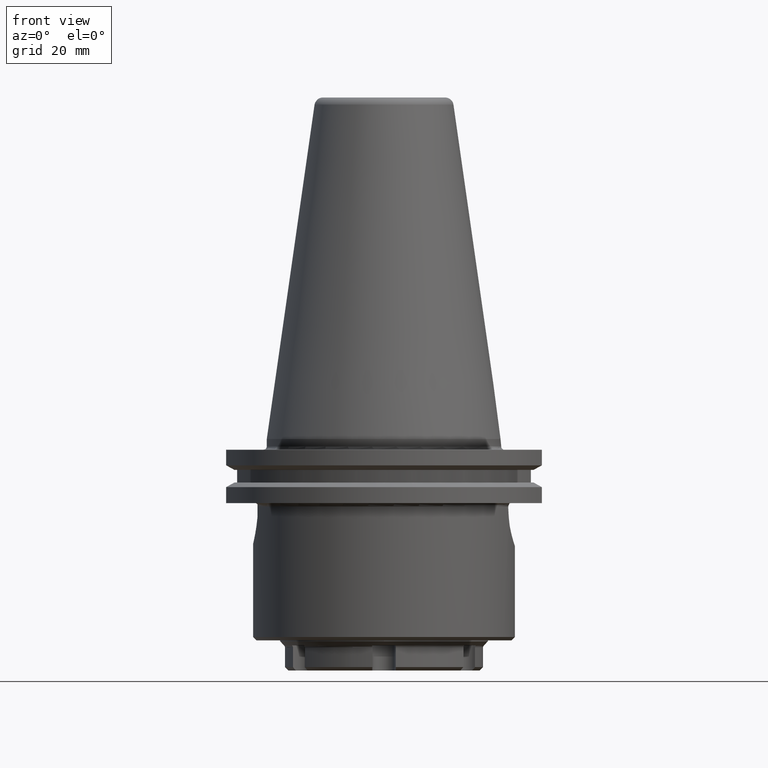
[diagram: clean part render]
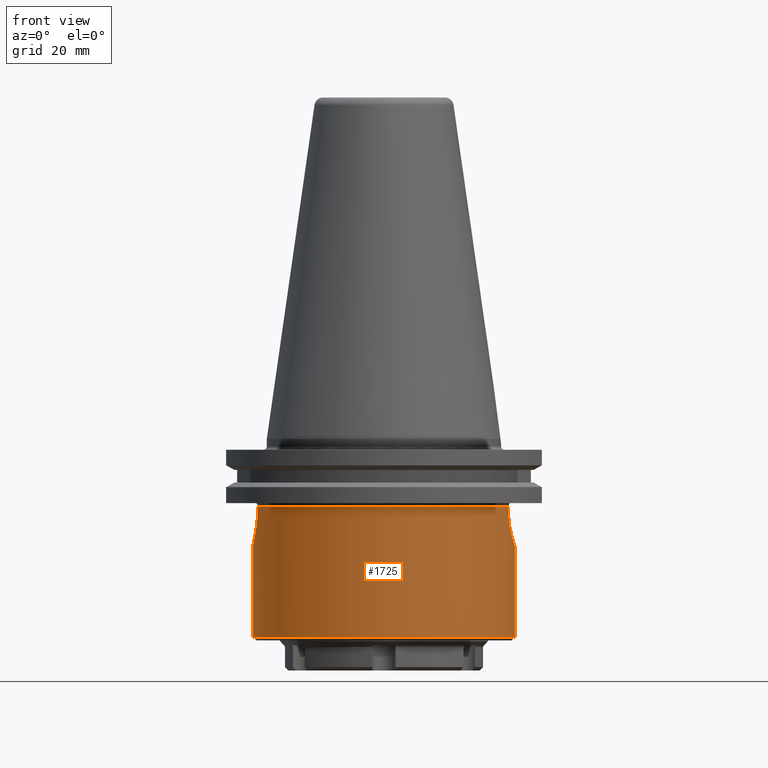
[diagram: same view with one face highlighted and labeled with its STEP entity id]
A machine part, front view. The second image highlights one B-rep face of the part: STEP entity #1725.
In plain terms, the highlighted cylindrical surface (bore or boss wall) has radius 39 mm, axis along (0, 0, -1).
Its self-contained STEP definition (entity closure, byte-faithful):
#121=LINE('',#3096,#221);
#122=LINE('',#3097,#222);
#221=VECTOR('',#2351,1000.);
#222=VECTOR('',#2352,1000.);
#254=CYLINDRICAL_SURFACE('',#1922,39.);
#377=CIRCLE('',#1900,39.);
#379=CIRCLE('',#1905,39.);
#381=CIRCLE('',#1909,39.);
#873=ORIENTED_EDGE('',*,*,#1131,.F.);
#874=ORIENTED_EDGE('',*,*,#1127,.T.);
#875=ORIENTED_EDGE('',*,*,#1124,.T.);
#876=ORIENTED_EDGE('',*,*,#1121,.F.);
#877=ORIENTED_EDGE('',*,*,#1118,.F.);
#878=ORIENTED_EDGE('',*,*,#1120,.F.);
#879=ORIENTED_EDGE('',*,*,#1116,.T.);
#880=ORIENTED_EDGE('',*,*,#1128,.T.);
#881=ORIENTED_EDGE('',*,*,#1114,.T.);
#1114=EDGE_CURVE('',#1294,#1293,#1370,.T.);
#1116=EDGE_CURVE('',#1296,#1295,#377,.T.);
#1118=EDGE_CURVE('',#1297,#1298,#1373,.T.);
#1120=EDGE_CURVE('',#1296,#1297,#1374,.T.);
#1121=EDGE_CURVE('',#1298,#1299,#1375,.T.);
#1124=EDGE_CURVE('',#1301,#1299,#379,.T.);
#1127=EDGE_CURVE('',#1293,#1301,#121,.F.);
#1128=EDGE_CURVE('',#1295,#1294,#122,.T.);
#1131=EDGE_CURVE('',#1304,#1304,#381,.T.);
#1293=VERTEX_POINT('',#3025);
#1294=VERTEX_POINT('',#3026);
#1295=VERTEX_POINT('',#3044);
#1296=VERTEX_POINT('',#3046);
#1297=VERTEX_POINT('',#3062);
#1298=VERTEX_POINT('',#3063);
#1299=VERTEX_POINT('',#3074);
#1301=VERTEX_POINT('',#3086);
#1304=VERTEX_POINT('',#3103);
#1370=B_SPLINE_CURVE_WITH_KNOTS('',3,(#3027,#3028,#3029,#3030,#3031,#3032,
#3033,#3034,#3035,#3036),.UNSPECIFIED.,.F.,.F.,(4,1,1,1,1,1,1,4),(0.00197409660882434,
0.00876782468064547,0.012164688716556,0.0155615527524666,0.0189584167883772,
0.0223552808242877,0.0257521448601983,0.0291490088961088),.UNSPECIFIED.);
#1373=B_SPLINE_CURVE_WITH_KNOTS('',3,(#3052,#3053,#3054,#3055,#3056,#3057,
#3058,#3059,#3060,#3061),.UNSPECIFIED.,.F.,.F.,(4,1,1,1,1,1,1,4),(0.,0.00317648407529113,
0.00635296815058225,0.00952945222587338,0.0127059363011645,0.0190589044517468,
0.0222353885270379,0.025411872602329),.UNSPECIFIED.);
#1374=B_SPLINE_CURVE_WITH_KNOTS('',3,(#3066,#3067,#3068,#3069),
 .UNSPECIFIED.,.F.,.F.,(4,4),(0.00227489071634437,0.0086139916078548),
 .UNSPECIFIED.);
#1375=B_SPLINE_CURVE_WITH_KNOTS('',3,(#3070,#3071,#3072,#3073),
 .UNSPECIFIED.,.F.,.F.,(4,4),(0.0014974438541701,0.00783953785349362),
 .UNSPECIFIED.);
#1481=EDGE_LOOP('',(#873));
#1482=EDGE_LOOP('',(#874,#875,#876,#877,#878,#879,#880,#881));
#1598=FACE_BOUND('',#1481,.T.);
#1599=FACE_BOUND('',#1482,.T.);
#1725=ADVANCED_FACE('',(#1598,#1599),#254,.T.);
#1900=AXIS2_PLACEMENT_3D('',#3045,#2336,#2337);
#1905=AXIS2_PLACEMENT_3D('',#3085,#2346,#2347);
#1909=AXIS2_PLACEMENT_3D('',#3102,#2358,#2359);
#1922=AXIS2_PLACEMENT_3D('',#3127,#2390,#2391);
#2336=DIRECTION('',(0.,2.22044604925031E-16,-1.));
#2337=DIRECTION('',(-1.,0.,0.));
#2346=DIRECTION('',(0.,2.22044604925031E-16,-1.));
#2347=DIRECTION('',(-1.,0.,0.));
#2351=DIRECTION('',(0.,2.22044604925031E-16,-1.));
#2352=DIRECTION('',(0.,2.22044604925031E-16,-1.));
#2358=DIRECTION('',(0.,2.22044604925031E-16,-1.));
#2359=DIRECTION('',(-1.,0.,0.));
#2390=DIRECTION('',(0.,2.22044604925031E-16,-1.));
#2391=DIRECTION('',(-1.,0.,0.));
#3025=CARTESIAN_POINT('',(-37.7,9.98548947222923,-23.344113570582));
#3026=CARTESIAN_POINT('',(-37.7,-9.98548947222922,-23.344113570582));
#3027=CARTESIAN_POINT('',(-37.7,-9.98548947222922,-23.344113570582));
#3028=CARTESIAN_POINT('',(-37.8873725462905,-9.27806846750046,-25.4875380975458));
#3029=CARTESIAN_POINT('',(-38.3731591566487,-7.36527865337046,-28.4535433486796));
#3030=CARTESIAN_POINT('',(-38.8922108407222,-3.45084677594832,-30.8045764775105));
#3031=CARTESIAN_POINT('',(-39.0524417623821,-0.0362620949982049,-31.4662371715233));
#3032=CARTESIAN_POINT('',(-38.8979348382223,3.39379847844601,-30.8301074332199));
#3033=CARTESIAN_POINT('',(-38.5075508940817,6.36759628228672,-29.0605873697474));
#3034=CARTESIAN_POINT('',(-38.0467201521215,8.64067887857672,-26.4841470402375));
#3035=CARTESIAN_POINT('',(-37.7945904385229,9.62836531299491,-24.4261689194582));
#3036=CARTESIAN_POINT('',(-37.7,9.98548947222922,-23.344113570582));
#3044=CARTESIAN_POINT('',(-37.7,-9.98548947222922,-20.1));
#3045=CARTESIAN_POINT('',(0.,4.46309655899313E-15,-20.1));
#3046=CARTESIAN_POINT('',(37.0048374184272,-12.3143009397922,-20.1));
#3052=CARTESIAN_POINT('',(37.5000000000001,-10.7121426428139,-26.1973586636161));
#3053=CARTESIAN_POINT('',(37.6673751191765,-10.1262125279524,-27.0817111765154));
#3054=CARTESIAN_POINT('',(38.0270595198239,-8.76607190592562,-28.6695758492856));
#3055=CARTESIAN_POINT('',(38.5439408345682,-6.17048914304116,-30.5209823302981));
#3056=CARTESIAN_POINT('',(38.910407024169,-3.194501093257,-31.6825842407854));
#3057=CARTESIAN_POINT('',(39.0913597667098,1.0671863518334,-32.2183717782579));
#3058=CARTESIAN_POINT('',(38.718853525549,5.30451952481769,-31.1410605562551));
#3059=CARTESIAN_POINT('',(38.0268339772268,8.76491849526155,-28.6701819172075));
#3060=CARTESIAN_POINT('',(37.6673778818025,10.126202856827,-27.0817257732803));
#3061=CARTESIAN_POINT('',(37.5000000000001,10.712142642814,-26.1973586636161));
#3062=CARTESIAN_POINT('',(37.5000000000001,-10.7121426428139,-26.1973586636161));
#3063=CARTESIAN_POINT('',(37.5000000000001,10.712142642814,-26.1973586636161));
#3066=CARTESIAN_POINT('',(37.0048374184272,-12.3143009397922,-20.1));
#3067=CARTESIAN_POINT('',(37.0475690401508,-12.185891156546,-22.2092189535273));
#3068=CARTESIAN_POINT('',(37.234064680337,-11.6431024722235,-24.3107633850546));
#3069=CARTESIAN_POINT('',(37.5000000000001,-10.7121426428139,-26.1973586636161));
#3070=CARTESIAN_POINT('',(37.5000000000001,10.712142642814,-26.1973586636161));
#3071=CARTESIAN_POINT('',(37.2342502017422,11.6424530174013,-24.3120795088684));
#3072=CARTESIAN_POINT('',(37.047622870081,12.1857293960186,-22.2118759813785));
#3073=CARTESIAN_POINT('',(37.0048374184272,12.3143009397922,-20.1));
#3074=CARTESIAN_POINT('',(37.0048374184272,12.3143009397922,-20.1));
#3085=CARTESIAN_POINT('',(0.,4.46309655899313E-15,-20.1));
#3086=CARTESIAN_POINT('',(-37.7,9.98548947222923,-20.1));
#3096=CARTESIAN_POINT('',(-37.7,9.98548947222921,57.));
#3097=CARTESIAN_POINT('',(-37.7,-9.98548947222924,57.));
#3102=CARTESIAN_POINT('',(0.,1.31006316905769E-14,-59.));
#3103=CARTESIAN_POINT('',(-39.,1.31006316905769E-14,-59.));
#3127=CARTESIAN_POINT('',(0.,-1.26565424807268E-14,57.));